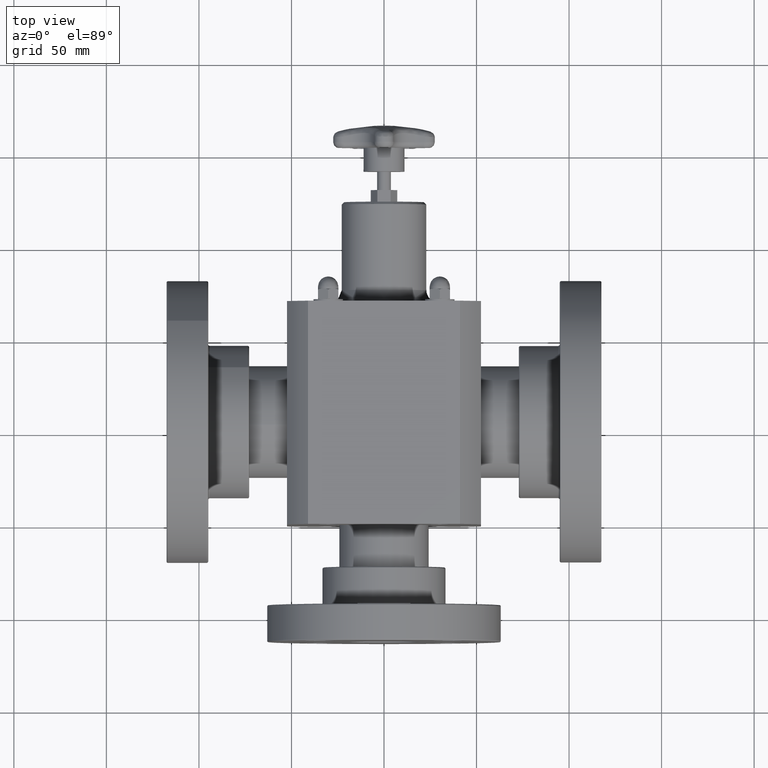
[diagram: clean part render]
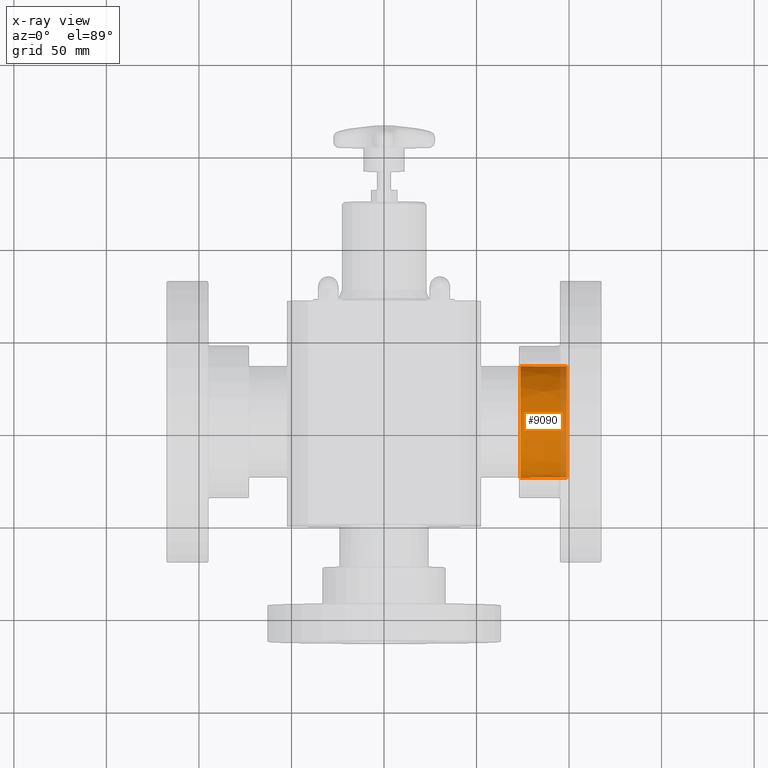
[diagram: x-ray — body ghosted, one internal face saturated and labeled with its STEP entity id]
A machine part, top view, then the same camera in x-ray: the body is ghosted and one INTERNAL B-rep face — a face not visible from any outside direction — is saturated and labeled: STEP entity #9090.
In plain terms, the highlighted conical surface has half-angle 0.338 deg.
Its self-contained STEP definition (entity closure, byte-faithful):
#932=CARTESIAN_POINT('',(3.886666666666697,2.127083847532865,-1.185380592602754));
#933=VERTEX_POINT('',#932);
#934=CARTESIAN_POINT('',(3.886666666666697,2.198000000000001,1.042806E-015));
#935=DIRECTION('',(1.0,8.400520E-018,1.404167E-016));
#936=DIRECTION('',(-1.406678E-016,0.059718865235483,0.998215235876004));
#937=AXIS2_PLACEMENT_3D('',#934,#935,#936);
#938=CIRCLE('',#937,1.187500000000000);
#939=EDGE_CURVE('',#933,#933,#938,.T.);
#9047=CARTESIAN_POINT('',(2.899822953902846,3.041807489499289,-0.843807489499286));
#9048=VERTEX_POINT('',#9047);
#9049=CARTESIAN_POINT('',(2.899822953902846,2.198000000000001,1.025289E-015));
#9050=DIRECTION('',(1.000000000000000,9.300431E-017,-9.300431E-017));
#9051=DIRECTION('',(1.315280E-016,-0.707106781186548,0.707106781186547));
#9052=AXIS2_PLACEMENT_3D('',#9049,#9050,#9051);
#9053=CIRCLE('',#9052,1.193323995681885);
#9054=EDGE_CURVE('',#9048,#9048,#9053,.T.);
#9079=CARTESIAN_POINT('',(3.632500000000000,2.198000000000001,1.011680E-015));
#9080=DIRECTION('',(-1.0,-3.084733E-016,-1.224647E-016));
#9081=DIRECTION('',(-1.315280E-016,0.707106781186548,-0.707106781186547));
#9082=AXIS2_PLACEMENT_3D('',#9079,#9080,#9081);
#9083=CONICAL_SURFACE('',#9082,1.189000000000000,0.338135100996136);
#9084=ORIENTED_EDGE('',*,*,#939,.T.);
#9085=EDGE_LOOP('',(#9084));
#9086=FACE_OUTER_BOUND('',#9085,.T.);
#9087=ORIENTED_EDGE('',*,*,#9054,.F.);
#9088=EDGE_LOOP('',(#9087));
#9089=FACE_BOUND('',#9088,.T.);
#9090=ADVANCED_FACE('',(#9086,#9089),#9083,.F.);